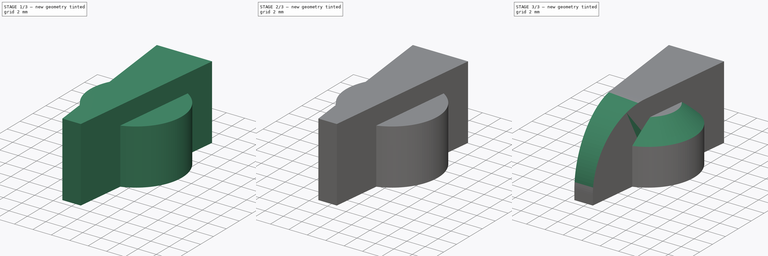
[diagram: build sequence overview — one tinted view per stage of 3, left to right]
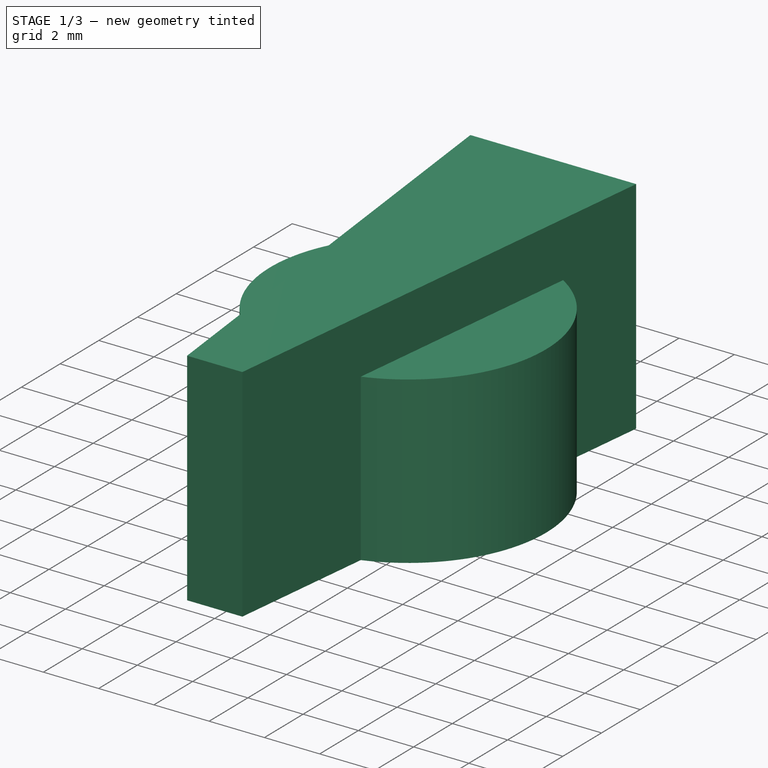
[diagram: stage 1 of 3 — iso view after this stage's code; geometry added in this stage tinted green]
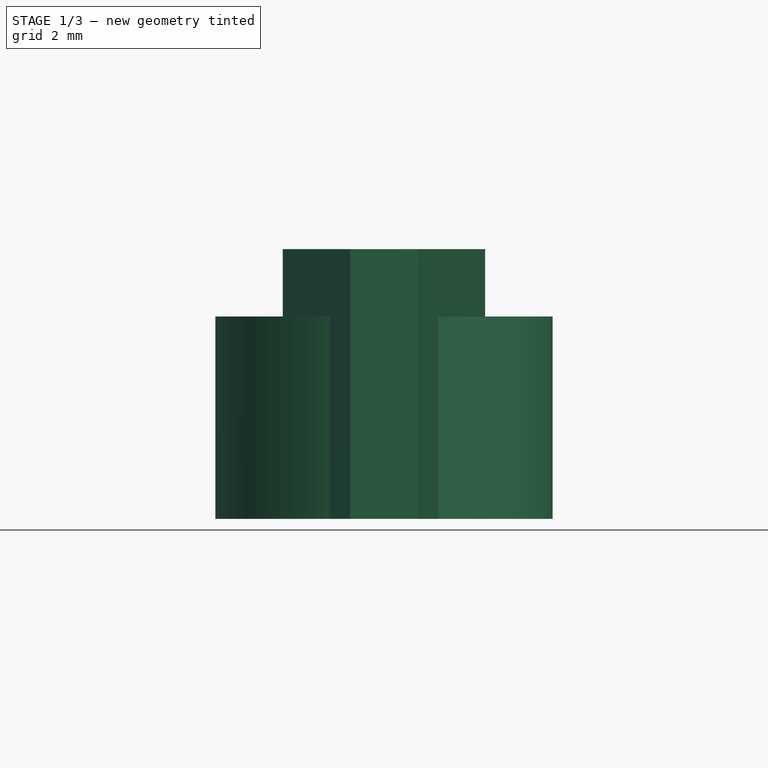
[diagram: stage 1 of 3 — front view after this stage's code; geometry added in this stage tinted green]
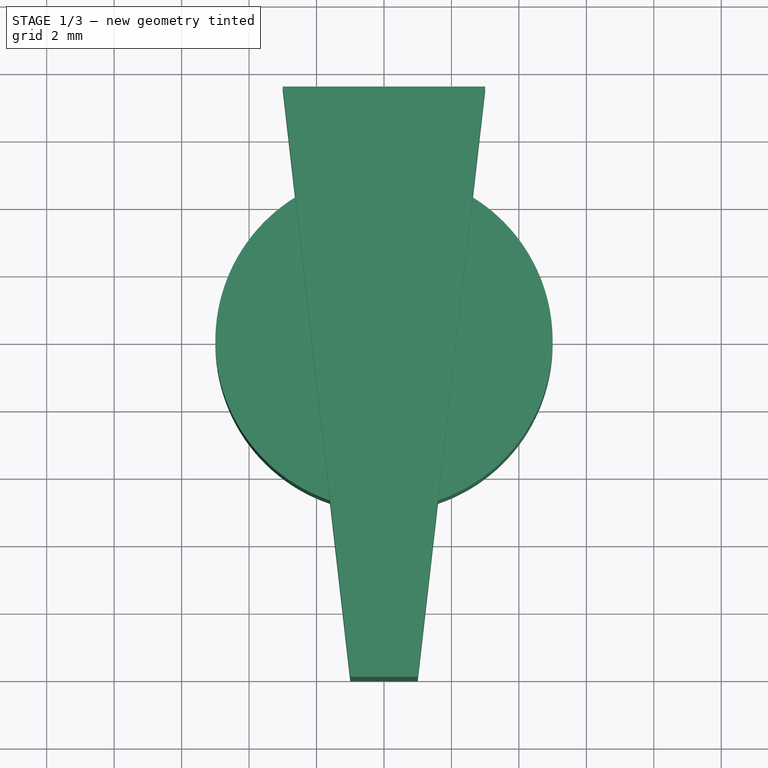
[diagram: stage 1 of 3 — top view after this stage's code; geometry added in this stage tinted green]
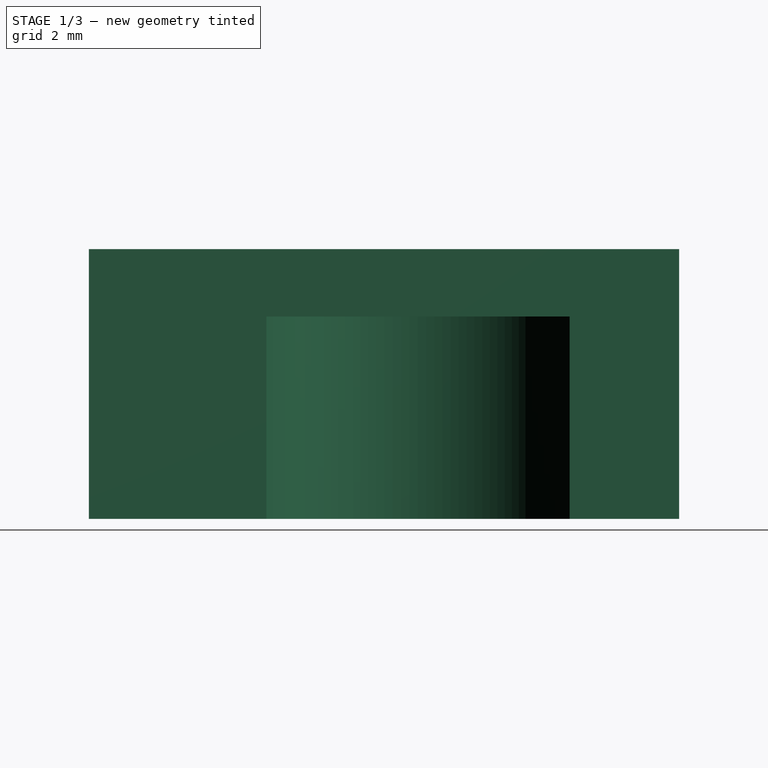
[diagram: stage 1 of 3 — right view after this stage's code; geometry added in this stage tinted green]
FCSTD DOCUMENT  (FreeCAD 1.0R39109 (Git))
Label: rotating-switch
License: All rights reserved
LicenseURL: https://en.wikipedia.org/wiki/All_rights_reserved
objects: Sketcher::SketchObject×4, PartDesign::Pad×3, PartDesign::Pocket×1, PartDesign::Chamfer×1, PartDesign::Fillet×1, PartDesign::Body×1
note: 27 computed .brp shape members not serialized (recipe doc carries the construction recipe); baked Part::Feature solids carry a one-line shape summary decoded from their .brp

FEATURE [Sketcher::SketchObject] Sketch
  ArcFitTolerance = 1e-06
  AttachmentSupport = -> [XY_Plane]
  FullyConstrained = true
  MakeInternals = false
  MapMode = 5
  sketch-geometry (6):
    g0: LineSegment StartX=1 StartY=-10 StartZ=0 EndX=3 EndY=7.5 EndZ=0
    g1: LineSegment StartX=-3 StartY=7.5 StartZ=0 EndX=-1 EndY=-10 EndZ=0
    g2: LineSegment StartX=0 StartY=-10 StartZ=0 EndX=1 EndY=-10 EndZ=0
    g3: LineSegment StartX=-1 StartY=-10 StartZ=0 EndX=0 EndY=-10 EndZ=0
    g4: LineSegment StartX=-3 StartY=7.5 StartZ=0 EndX=0 EndY=7.5 EndZ=0
    g5: LineSegment StartX=3 StartY=7.5 StartZ=0 EndX=0 EndY=7.5 EndZ=0
  constraints (18):
    c: PointOnObject(g2,g-2)
    c: Coincident(g2,g0)
    c: Coincident(g3,g1)
    c: Coincident(g3,g2)
    c: Horizontal(g3)
    c: Horizontal(g2)
    c: Equal(g2,g3)
    c: Coincident(g4,g1)
    c: PointOnObject(g4,g-2)
    c: Horizontal(g4)
    c: Coincident(g5,g0)
    c: Coincident(g5,g4)
    c: Horizontal(g5)
    c: Equal(g5,g4)
    c: Distance(g2,g5) = 17.5
    c: Distance(g0,g1) = 2
    c: DistanceX(g1,g0) = 6
    c: Distance(g-1,g5) = 7.5
FEATURE [PartDesign::Pad] Pad
  Direction = (0,0,1)
  Length = 8
  Length2 = 10
  Profile = -> Sketch
  ReferenceAxis = -> Sketch [N_Axis]
  Refine = true
  Suppressed = false
  Type = 0
FEATURE [Sketcher::SketchObject] Sketch001
  ArcFitTolerance = 1e-06
  AttachmentSupport = -> [Pad]
  FullyConstrained = true
  MakeInternals = false
  MapMode = 5
  Placement = pos=(0,0,0) rot=(1,0,0;3.14159rad)
  sketch-geometry (1):
    g0: Circle CenterX=0 CenterY=0 CenterZ=0 NormalX=0 NormalY=0 NormalZ=1 AngleXU=0 Radius=5
  constraints (2):
    c: Coincident(g0,g-1)
    c: Diameter(g0) = 10
FEATURE [PartDesign::Pad] Pad001
  BaseFeature = -> Pad
  Direction = (0,0,-1)
  Length = 6
  Length2 = 10
  Profile = -> Sketch001
  ReferenceAxis = -> Sketch001 [N_Axis]
  Refine = true
  Reversed = true
  Suppressed = false
  Type = 0
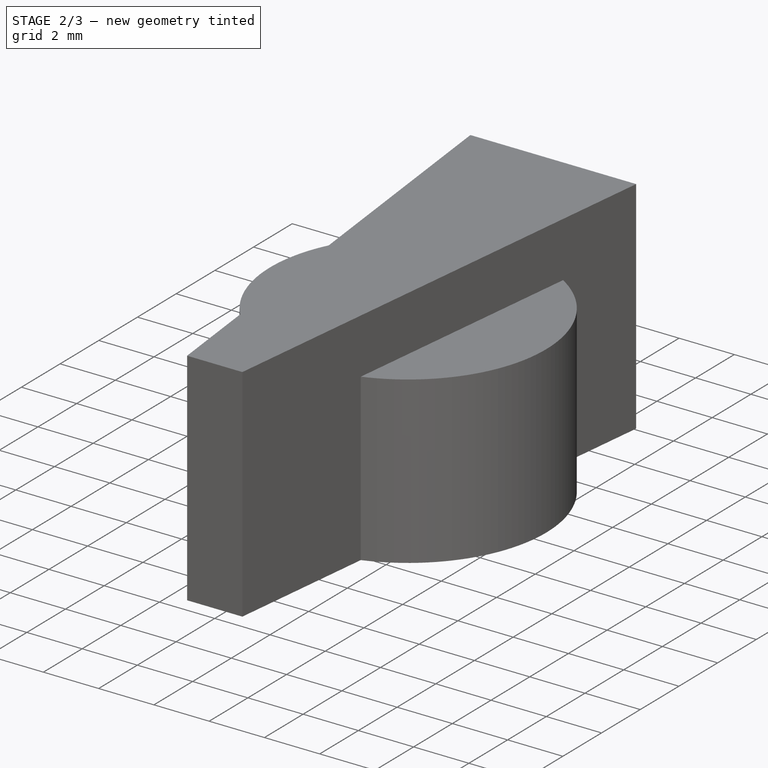
[diagram: stage 2 of 3 — iso view after this stage's code; geometry added in this stage tinted green]
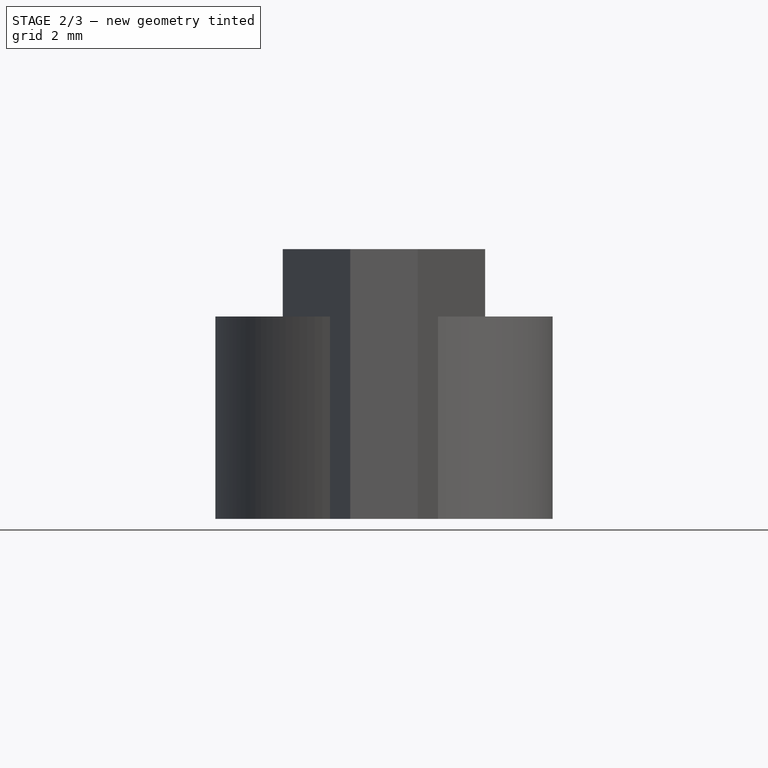
[diagram: stage 2 of 3 — front view after this stage's code; geometry added in this stage tinted green]
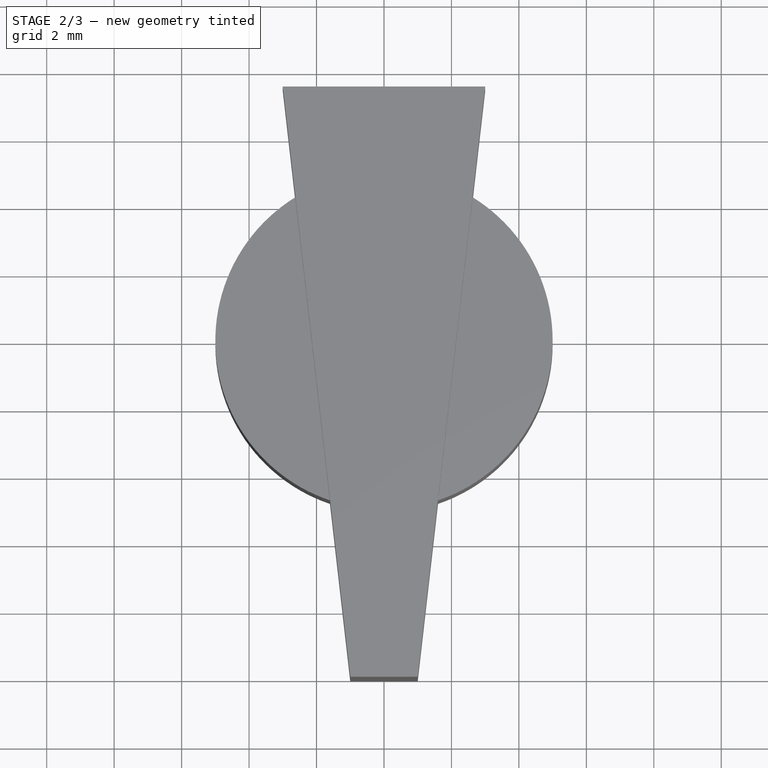
[diagram: stage 2 of 3 — top view after this stage's code; geometry added in this stage tinted green]
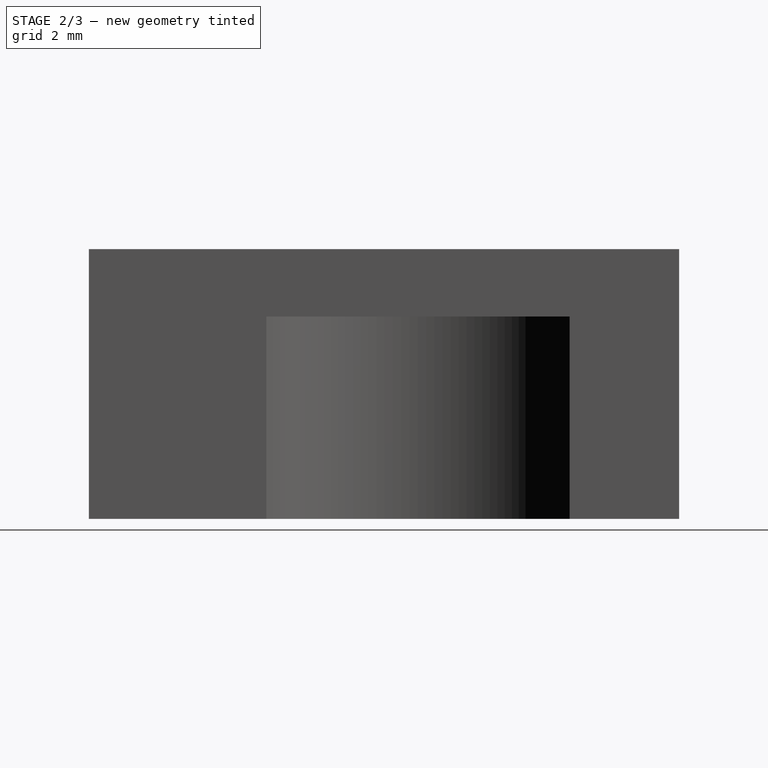
[diagram: stage 2 of 3 — right view after this stage's code; geometry added in this stage tinted green]
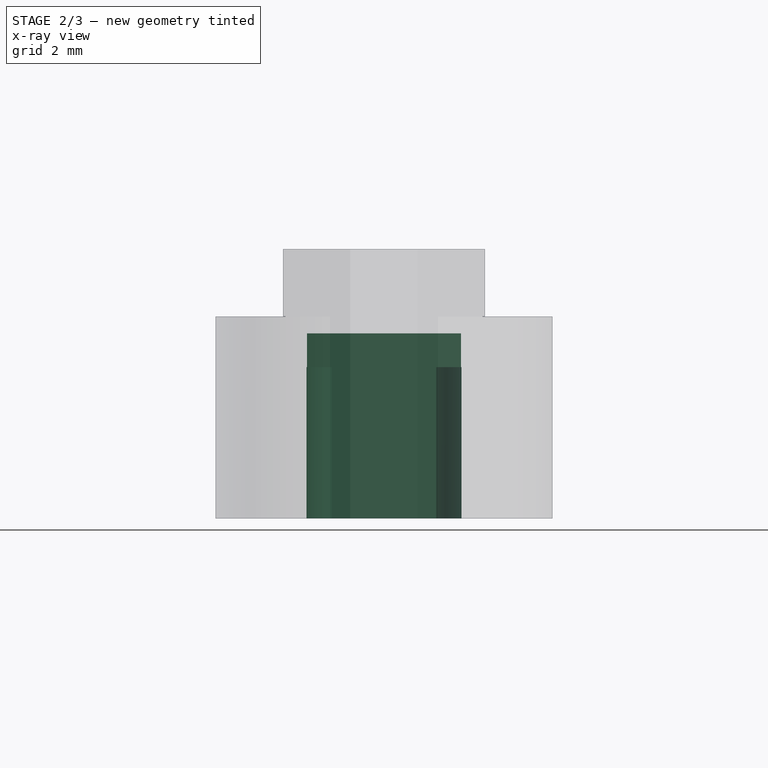
[diagram: stage 2 of 3 — x-ray composite at the front view; earlier geometry ghosted, this stage's added geometry solid]
FEATURE [Sketcher::SketchObject] Sketch002
  ArcFitTolerance = 1e-06
  AttachmentSupport = -> [Pad001]
  FullyConstrained = true
  MakeInternals = false
  MapMode = 5
  Placement = pos=(0,0,0) rot=(1,0,0;3.14159rad)
  sketch-geometry (2):
    g0: LineSegment StartX=-1.54919 StartY=-1.7 StartZ=0 EndX=1.54919 EndY=-1.7 EndZ=0
    g1: ArcOfCircle CenterX=0 CenterY=0 CenterZ=0 NormalX=0 NormalY=0 NormalZ=1 AngleXU=0 Radius=2.3 StartAngle=5.45141 EndAngle=10.2566
  constraints (6):
    c: Horizontal(g0)
    c: Coincident(g1,g-1)
    c: Coincident(g1,g0)
    c: Coincident(g1,g0)
    c: Distance(g1,g0) = 1.7
    c: Radius(g1) = 2.3
FEATURE [PartDesign::Pocket] Pocket
  BaseFeature = -> Pad001
  Direction = (0,0,1)
  Length = 5.5
  Length2 = 5
  Profile = -> Sketch002
  ReferenceAxis = -> Sketch002 [N_Axis]
  Refine = true
  Suppressed = false
  Type = 0
FEATURE [Sketcher::SketchObject] Sketch003
  ArcFitTolerance = 1e-06
  AttachmentSupport = -> [Pocket]
  ExternalGeometry = -> [Pocket]
  FullyConstrained = true
  MakeInternals = false
  MapMode = 5
  Placement = pos=(0,0,5.5) rot=(1,0,0;3.14159rad)
  sketch-geometry (6):
    g0: LineSegment StartX=-2.28637 StartY=0.25 StartZ=0 EndX=2.28637 EndY=0.25 EndZ=0
    g1: LineSegment StartX=-2.28637 StartY=-0.25 StartZ=0 EndX=2.28637 EndY=-0.25 EndZ=0
    g2: LineSegment [constr] StartX=2e-16 StartY=0.25 StartZ=0 EndX=0 EndY=0 EndZ=0
    g3: LineSegment [constr] StartX=0 StartY=0 StartZ=0 EndX=0 EndY=-0.25 EndZ=0
    g4: ArcOfCircle CenterX=0 CenterY=0 CenterZ=0 NormalX=0 NormalY=0 NormalZ=1 AngleXU=0 Radius=2.3 StartAngle=3.03268 EndAngle=3.2505
    g5: ArcOfCircle CenterX=1.15685 CenterY=7e-16 CenterZ=0 NormalX=0 NormalY=0 NormalZ=1 AngleXU=0 Radius=1.15685 StartAngle=6.06536 EndAngle=6.50101
  constraints (17):
    c: PointOnObject(g0,g-3)
    c: PointOnObject(g0,g-3)
    c: Horizontal(g0)
    c: PointOnObject(g1,g-3)
    c: Horizontal(g1)
    c: Symmetric(g0,g0,g2)
    c: Coincident(g2,g-1)
    c: Coincident(g3,g2)
    c: Symmetric(g1,g1,g3)
    c: Distance(g2,g2) = 0.25
    c: Coincident(g4,g0)
    c: Coincident(g4,g1)
    c: Coincident(g5,g0)
    c: Coincident(g5,g1)
    c: PointOnObject(g2,g5)
    c: Coincident(g4,g2)
    c: Equal(g3,g2)
FEATURE [PartDesign::Pad] Pad002
  BaseFeature = -> Pocket
  Direction = (0,0,-1)
  Length = 1
  Length2 = 10
  Profile = -> Sketch003
  ReferenceAxis = -> Sketch003 [N_Axis]
  Refine = true
  Suppressed = false
  Type = 0
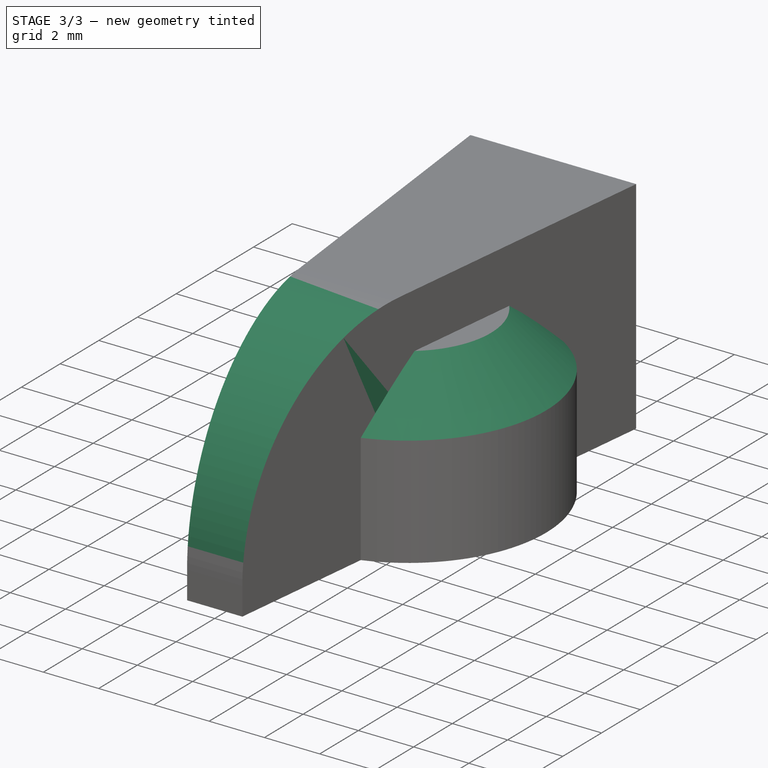
[diagram: stage 3 of 3 — iso view after this stage's code; geometry added in this stage tinted green]
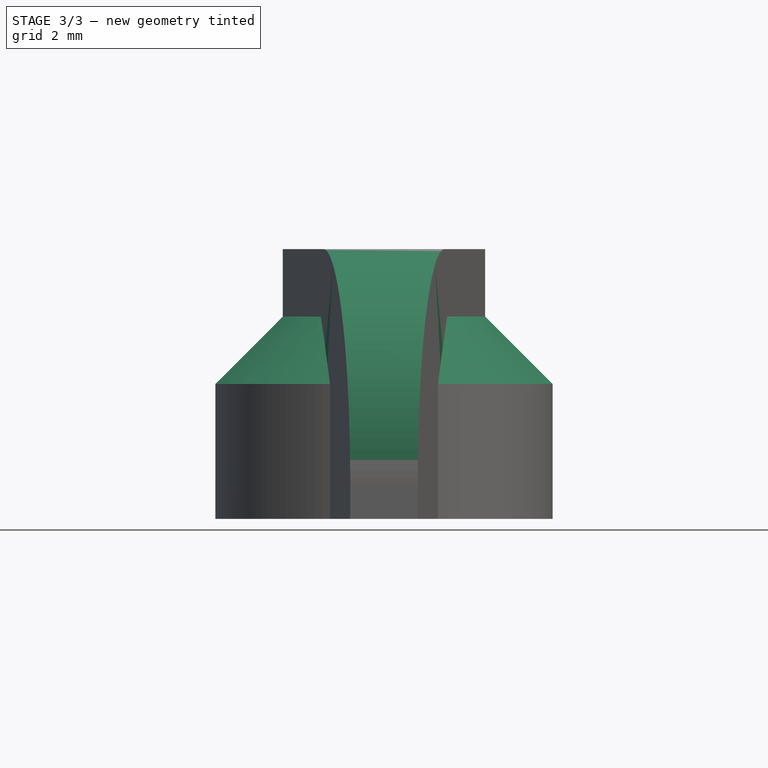
[diagram: stage 3 of 3 — front view after this stage's code; geometry added in this stage tinted green]
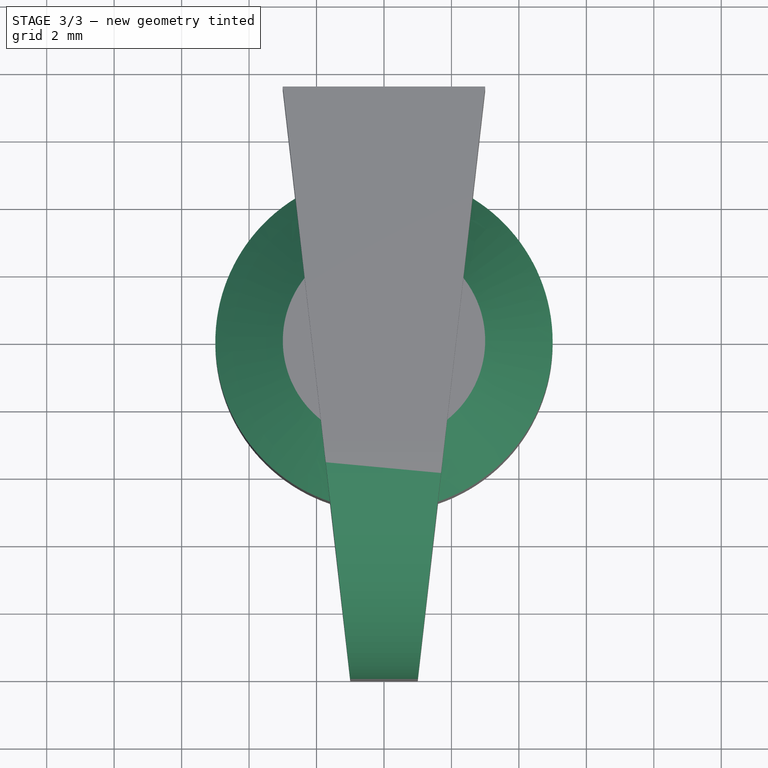
[diagram: stage 3 of 3 — top view after this stage's code; geometry added in this stage tinted green]
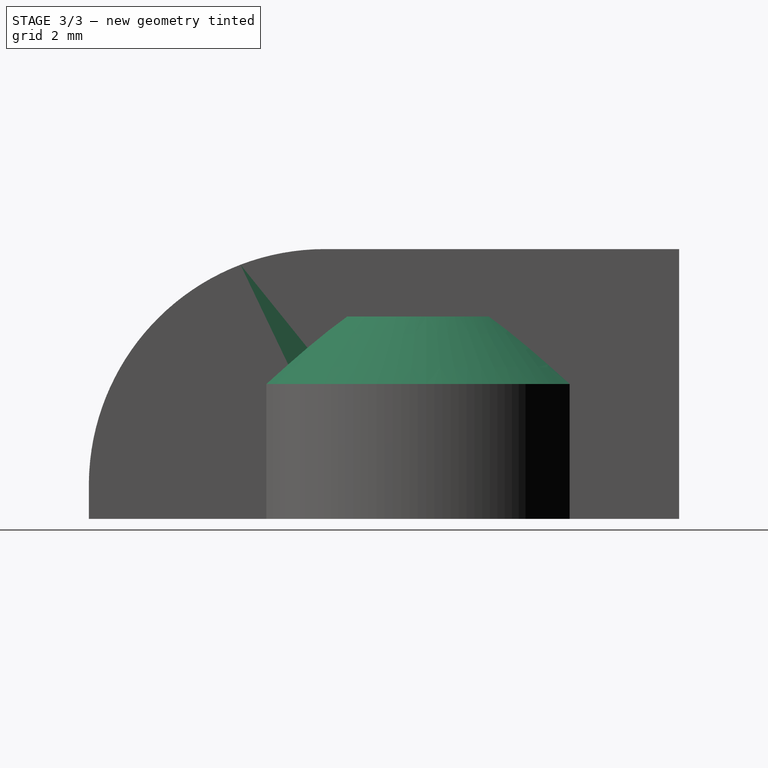
[diagram: stage 3 of 3 — right view after this stage's code; geometry added in this stage tinted green]
FEATURE [PartDesign::Chamfer] Chamfer
  Angle = 45
  Base = -> Pad002 [Edge28,Edge27,Edge18]
  BaseFeature = -> Pad002
  ChamferType = 0
  FlipDirection = false
  Refine = true
  Size = 2
  Size2 = 1
  SupportTransform = false
  Suppressed = false
  UseAllEdges = false
FEATURE [PartDesign::Fillet] Fillet
  Base = -> Chamfer [Edge24]
  BaseFeature = -> Chamfer
  Radius = 7
  Refine = true
  SupportTransform = false
  Suppressed = false
  UseAllEdges = false
FEATURE [PartDesign::Body] Body
  AllowCompound = false
  Group = -> [Sketch,Pad,Sketch001,Pad001,Sketch002,Pocket,Sketch003,Pad002,Chamfer,Fillet]
  Origin = -> Origin
  Tip = -> Fillet
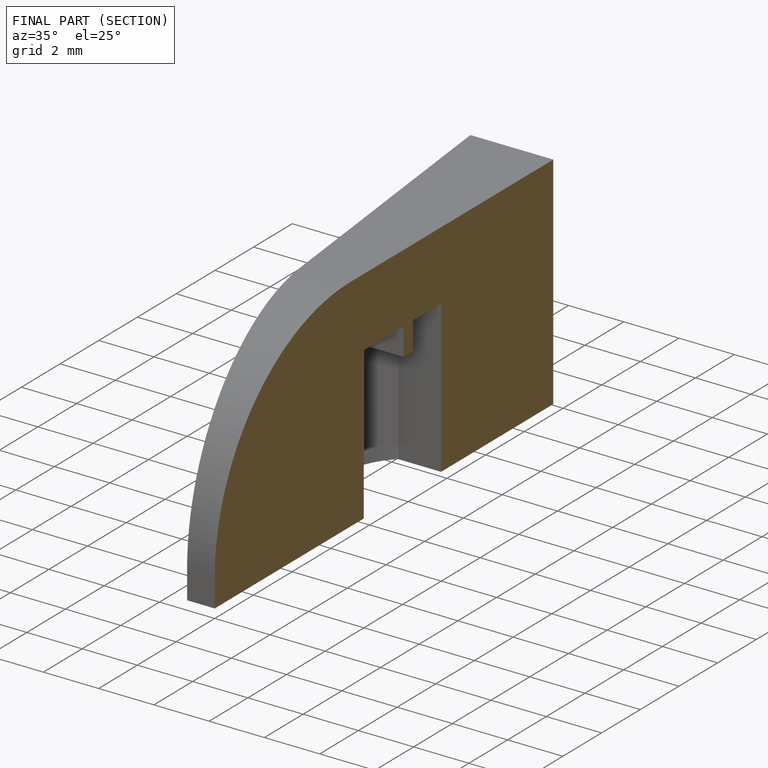
[diagram: finished part — half-section view (interior)]
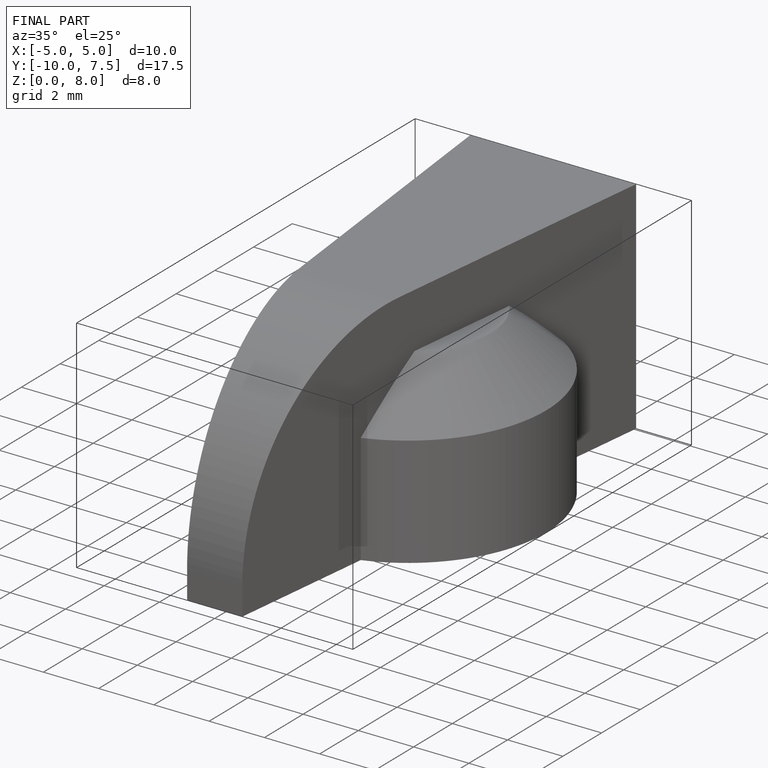
[diagram: finished part — iso view with bounding-box wireframe]
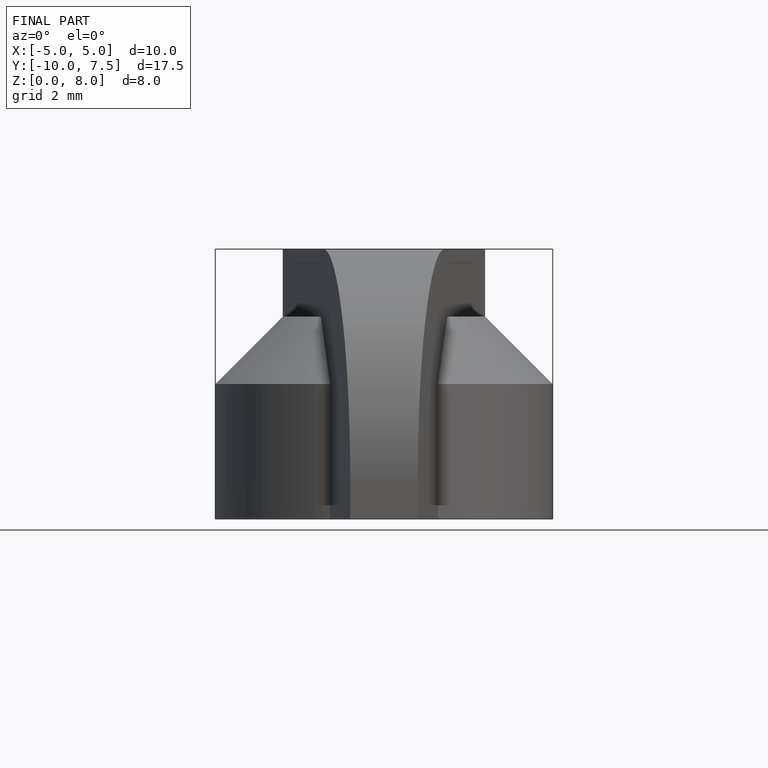
[diagram: finished part — front view with bounding-box wireframe]
